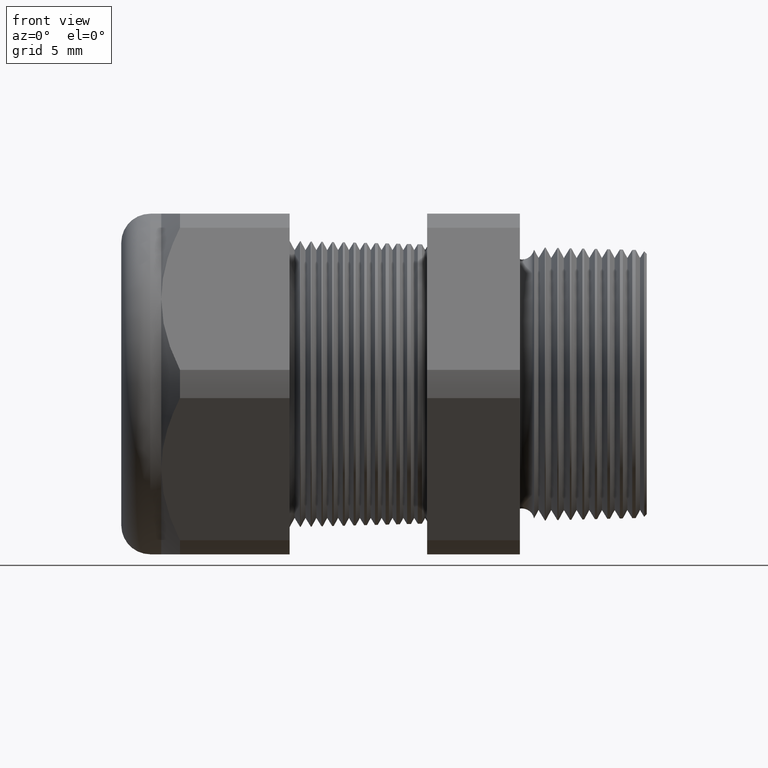
[diagram: clean part render]
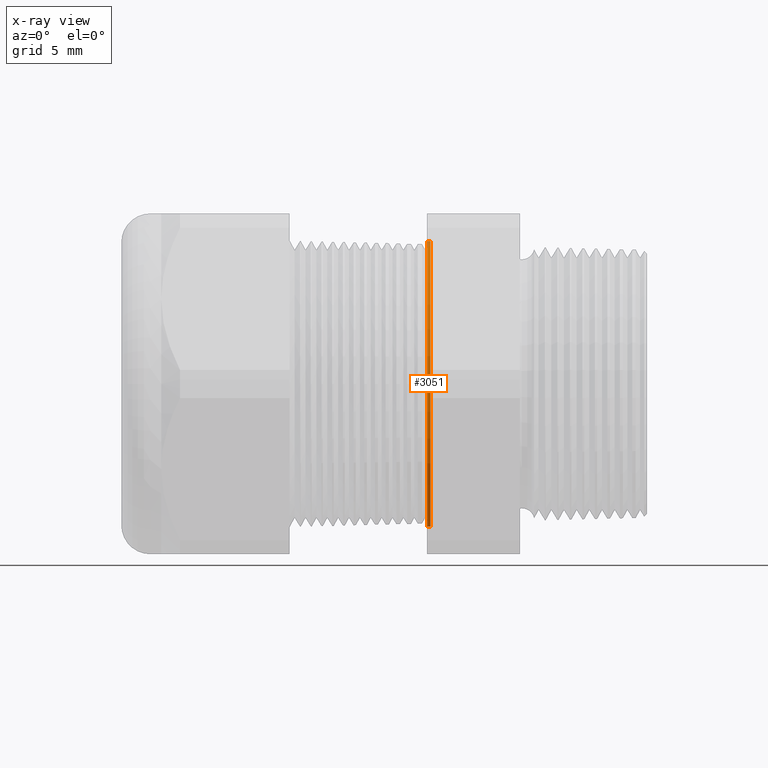
[diagram: x-ray — body ghosted, one internal face saturated and labeled with its STEP entity id]
A machine part, front view, then the same camera in x-ray: the body is ghosted and one INTERNAL B-rep face — a face not visible from any outside direction — is saturated and labeled: STEP entity #3051.
In plain terms, the highlighted conical surface has half-angle 1.5 deg.
Its self-contained STEP definition (entity closure, byte-faithful):
#849 = DIRECTION ( 'NONE',  ( -0.9996573249755575900, 0.0000000000000000000, 0.02617694830786370200 ) ) ;
#850 = VECTOR ( 'NONE', #849, 39.37007874015748900 ) ;
#851 = CARTESIAN_POINT ( 'NONE',  ( -0.5565754495825407900, 0.0000000000000000000, 0.3942443365923946100 ) ) ;
#852 = LINE ( 'NONE', #851, #850 ) ;
#968 = CARTESIAN_POINT ( 'NONE',  ( -0.5659055118110234400, 4.831092660373746600E-017, -0.3944886528701452300 ) ) ;
#969 = DIRECTION ( 'NONE',  ( -0.9996573249755575900, 3.205751595667100700E-018, -0.02617694830786370200 ) ) ;
#970 = VECTOR ( 'NONE', #969, 39.37007874015748900 ) ;
#971 = CARTESIAN_POINT ( 'NONE',  ( -0.5565754495825407900, 4.828100648898478500E-017, -0.3942443365923946100 ) ) ;
#972 = LINE ( 'NONE', #971, #970 ) ;
#1060 = DIRECTION ( 'NONE',  ( 0.0000000000000000000, 0.0000000000000000000, 1.000000000000000000 ) ) ;
#1061 = DIRECTION ( 'NONE',  ( -1.000000000000000000, 0.0000000000000000000, 0.0000000000000000000 ) ) ;
#1062 = CARTESIAN_POINT ( 'NONE',  ( -0.5565754495825407900, 0.0000000000000000000, 0.0000000000000000000 ) ) ;
#1063 = AXIS2_PLACEMENT_3D ( 'NONE', #1062, #1061, #1060 ) ;
#1064 = CONICAL_SURFACE ( 'NONE', #1063, 0.3942443365923946100, 0.02617993877990548700 ) ;
#1065 = FACE_OUTER_BOUND ( 'NONE', #3052, .T. ) ;
#1066 = CARTESIAN_POINT ( 'NONE',  ( -0.5659055118110234400, 0.0000000000000000000, 0.3944886528701452300 ) ) ;
#1067 = DIRECTION ( 'NONE',  ( 0.0000000000000000000, 0.0000000000000000000, 1.000000000000000000 ) ) ;
#1068 = DIRECTION ( 'NONE',  ( -1.000000000000000000, 0.0000000000000000000, 0.0000000000000000000 ) ) ;
#1069 = CARTESIAN_POINT ( 'NONE',  ( -0.5659055118110234400, 0.0000000000000000000, 0.0000000000000000000 ) ) ;
#1070 = AXIS2_PLACEMENT_3D ( 'NONE', #1069, #1068, #1067 ) ;
#1071 = CIRCLE ( 'NONE', #1070, 0.3944886528701452800 ) ;
#1116 = CARTESIAN_POINT ( 'NONE',  ( -0.5565754495825407900, 0.0000000000000000000, -0.3942443365923946100 ) ) ;
#1117 = CARTESIAN_POINT ( 'NONE',  ( -0.5565754495825407900, 4.828100648898477900E-017, 0.3942443365923946100 ) ) ;
#1118 = DIRECTION ( 'NONE',  ( 0.0000000000000000000, 0.0000000000000000000, -1.000000000000000000 ) ) ;
#1119 = DIRECTION ( 'NONE',  ( 1.000000000000000000, 0.0000000000000000000, 0.0000000000000000000 ) ) ;
#1120 = CARTESIAN_POINT ( 'NONE',  ( -0.5565754495825407900, 0.0000000000000000000, 0.0000000000000000000 ) ) ;
#1121 = AXIS2_PLACEMENT_3D ( 'NONE', #1120, #1119, #1118 ) ;
#1122 = CIRCLE ( 'NONE', #1121, 0.3942443365923946100 ) ;
#2928 = EDGE_CURVE ( 'NONE', #3055, #3049, #852, .T. ) ;
#2983 = EDGE_CURVE ( 'NONE', #3056, #2984, #972, .T. ) ;
#2984 = VERTEX_POINT ( 'NONE', #968 ) ;
#3047 = ORIENTED_EDGE ( 'NONE', *, *, #3048, .T. ) ;
#3048 = EDGE_CURVE ( 'NONE', #2984, #3049, #1071, .T. ) ;
#3049 = VERTEX_POINT ( 'NONE', #1066 ) ;
#3050 = ORIENTED_EDGE ( 'NONE', *, *, #2928, .F. ) ;
#3051 = ADVANCED_FACE ( 'NONE', ( #1065 ), #1064, .F. ) ;
#3052 = EDGE_LOOP ( 'NONE', ( #3053, #3057, #3047, #3050 ) ) ;
#3053 = ORIENTED_EDGE ( 'NONE', *, *, #3054, .T. ) ;
#3054 = EDGE_CURVE ( 'NONE', #3055, #3056, #1122, .T. ) ;
#3055 = VERTEX_POINT ( 'NONE', #1117 ) ;
#3056 = VERTEX_POINT ( 'NONE', #1116 ) ;
#3057 = ORIENTED_EDGE ( 'NONE', *, *, #2983, .T. ) ;